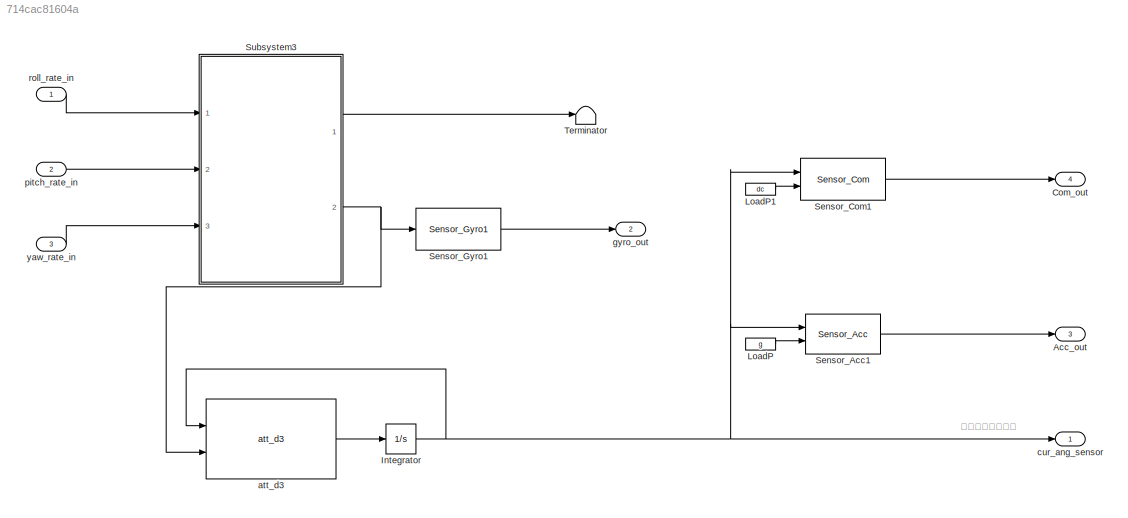
MODEL slx_714cac81604a
KIND model
BLOCK [Outport] Acc_out
  IconDisplay = Port number
  Port = 3
BLOCK [Outport] Com_out
  IconDisplay = Port number
  Port = 4
BLOCK [Integrator] Integrator
  InitialCondition = [0;0;0]
  Ports = [1, 1]
BLOCK [Constant] LoadP
  SampleTime = 0
  Value = g
BLOCK [Constant] LoadP1
  SampleTime = 0
  Value = dc
BLOCK [Reference] Sensor_Acc1  REF=Lib_Sensors/Sensor_Acc
  Ports = [2, 1]
  SourceBlock = Lib_Sensors/Sensor_Acc
  SourceType = SubSystem
BLOCK [Reference] Sensor_Com1  REF=Lib_Sensors/Sensor_Com
  Ports = [2, 1]
  SourceBlock = Lib_Sensors/Sensor_Com
  SourceType = SubSystem
BLOCK [Reference] Sensor_Gyro1  REF=Lib_Sensors/Sensor_Gyro1
  Ports = [1, 1]
  SourceBlock = Lib_Sensors/Sensor_Gyro1
  SourceType = SubSystem
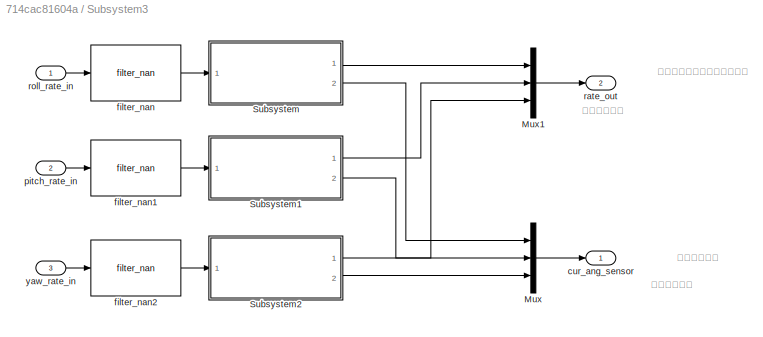
BLOCK [SubSystem] Subsystem3
  Ports = [3, 2]
  RequestExecContextInheritance = off
BLOCK [Mux] Subsystem3/Mux
  DisplayOption = bar
  Inputs = 3
  Ports = [3, 1]
BLOCK [Mux] Subsystem3/Mux1
  DisplayOption = bar
  Inputs = 3
  Ports = [3, 1]
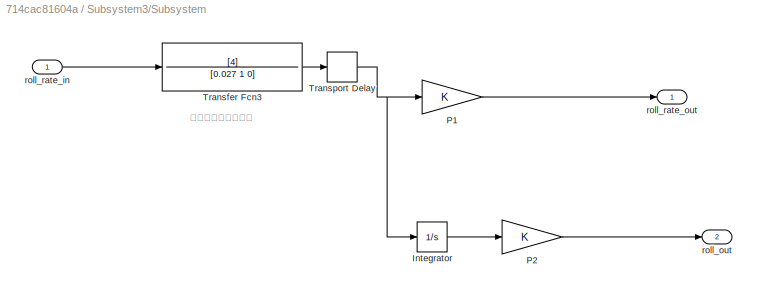
BLOCK [SubSystem] Subsystem3/Subsystem
  Ports = [1, 2]
  RequestExecContextInheritance = off
BLOCK [Integrator] Subsystem3/Subsystem/Integrator
  Ports = [1, 1]
BLOCK [Gain] Subsystem3/Subsystem/P1
  OutDataTypeStr = Inherit: Inherit via internal rule
  ParamDataTypeStr = Inherit: Inherit via internal rule
  SaturateOnIntegerOverflow = off
BLOCK [Gain] Subsystem3/Subsystem/P2
  OutDataTypeStr = Inherit: Inherit via internal rule
  ParamDataTypeStr = Inherit: Inherit via internal rule
  SaturateOnIntegerOverflow = off
BLOCK [TransferFcn] Subsystem3/Subsystem/Transfer Fcn3
  AbsoluteTolerance = 1e-19
  Denominator = [0.027 1 0]
  Numerator = [4]
BLOCK [TransportDelay] Subsystem3/Subsystem/Transport Delay
  DelayTime = 0.02606
  Ports = [1, 1]
BLOCK [Outport] Subsystem3/Subsystem/roll_out
  IconDisplay = Port number
  Port = 2
BLOCK [Inport] Subsystem3/Subsystem/roll_rate_in
  IconDisplay = Port number
BLOCK [Outport] Subsystem3/Subsystem/roll_rate_out
  IconDisplay = Port number
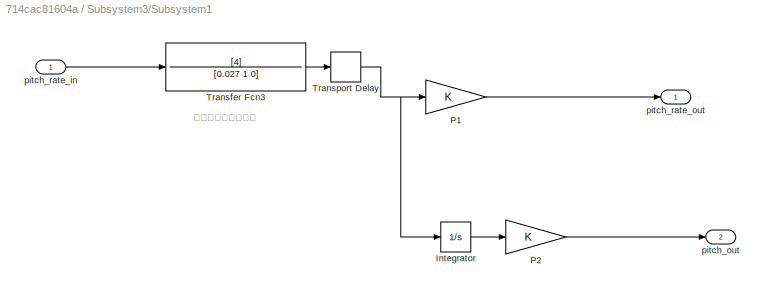
BLOCK [SubSystem] Subsystem3/Subsystem1
  Ports = [1, 2]
  RequestExecContextInheritance = off
BLOCK [Integrator] Subsystem3/Subsystem1/Integrator
  Ports = [1, 1]
BLOCK [Gain] Subsystem3/Subsystem1/P1
  OutDataTypeStr = Inherit: Inherit via internal rule
  ParamDataTypeStr = Inherit: Inherit via internal rule
  SaturateOnIntegerOverflow = off
BLOCK [Gain] Subsystem3/Subsystem1/P2
  OutDataTypeStr = Inherit: Inherit via internal rule
  ParamDataTypeStr = Inherit: Inherit via internal rule
  SaturateOnIntegerOverflow = off
BLOCK [TransferFcn] Subsystem3/Subsystem1/Transfer Fcn3
  AbsoluteTolerance = 1e-25
  Denominator = [0.027 1 0]
  Numerator = [4]
BLOCK [TransportDelay] Subsystem3/Subsystem1/Transport Delay
  DelayTime = 0.02606
  Ports = [1, 1]
BLOCK [Outport] Subsystem3/Subsystem1/pitch_out
  IconDisplay = Port number
  Port = 2
BLOCK [Inport] Subsystem3/Subsystem1/pitch_rate_in
  IconDisplay = Port number
BLOCK [Outport] Subsystem3/Subsystem1/pitch_rate_out
  IconDisplay = Port number
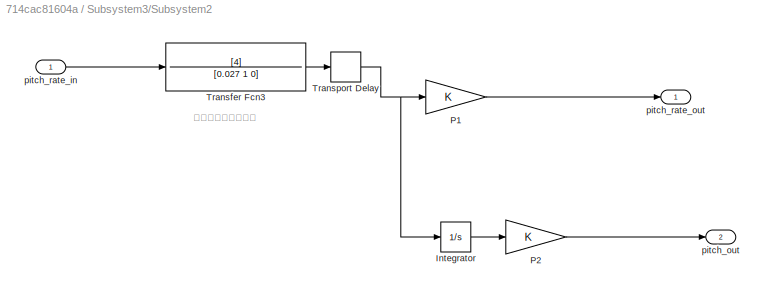
BLOCK [SubSystem] Subsystem3/Subsystem2
  Ports = [1, 2]
  RequestExecContextInheritance = off
BLOCK [Integrator] Subsystem3/Subsystem2/Integrator
  Ports = [1, 1]
BLOCK [Gain] Subsystem3/Subsystem2/P1
  OutDataTypeStr = Inherit: Inherit via internal rule
  ParamDataTypeStr = Inherit: Inherit via internal rule
  SaturateOnIntegerOverflow = off
BLOCK [Gain] Subsystem3/Subsystem2/P2
  OutDataTypeStr = Inherit: Inherit via internal rule
  ParamDataTypeStr = Inherit: Inherit via internal rule
  SaturateOnIntegerOverflow = off
BLOCK [TransferFcn] Subsystem3/Subsystem2/Transfer Fcn3
  AbsoluteTolerance = 1e-19
  Denominator = [0.027 1 0]
  Numerator = [4]
BLOCK [TransportDelay] Subsystem3/Subsystem2/Transport Delay
  DelayTime = 0.02606
  Ports = [1, 1]
BLOCK [Outport] Subsystem3/Subsystem2/pitch_out
  IconDisplay = Port number
  Port = 2
BLOCK [Inport] Subsystem3/Subsystem2/pitch_rate_in
  IconDisplay = Port number
BLOCK [Outport] Subsystem3/Subsystem2/pitch_rate_out
  IconDisplay = Port number
BLOCK [Outport] Subsystem3/cur_ang_sensor
  IconDisplay = Port number
BLOCK [Reference] Subsystem3/filter_nan  REF=Lib_SimpleCopter/filter_nan
  Ports = [1, 1]
  SourceBlock = Lib_SimpleCopter/filter_nan
  SourceType = SubSystem
BLOCK [Reference] Subsystem3/filter_nan1  REF=Lib_SimpleCopter/filter_nan
  Ports = [1, 1]
  SourceBlock = Lib_SimpleCopter/filter_nan
  SourceType = SubSystem
BLOCK [Reference] Subsystem3/filter_nan2  REF=Lib_SimpleCopter/filter_nan
  Ports = [1, 1]
  SourceBlock = Lib_SimpleCopter/filter_nan
  SourceType = SubSystem
BLOCK [Inport] Subsystem3/pitch_rate_in
  IconDisplay = Port number
  Port = 2
BLOCK [Outport] Subsystem3/rate_out
  IconDisplay = Port number
  Port = 2
BLOCK [Inport] Subsystem3/roll_rate_in
  IconDisplay = Port number
BLOCK [Inport] Subsystem3/yaw_rate_in
  IconDisplay = Port number
  Port = 3
BLOCK [Terminator] Terminator
BLOCK [Reference] att_d3  REF=Lib_Sensors/att_d3
  Ports = [2, 1]
  SourceBlock = Lib_Sensors/att_d3
  SourceType = SubSystem
BLOCK [Outport] cur_ang_sensor
  IconDisplay = Port number
BLOCK [Outport] gyro_out
  IconDisplay = Port number
  Port = 2
BLOCK [Inport] pitch_rate_in
  IconDisplay = Port number
  Port = 2
BLOCK [Inport] roll_rate_in
  IconDisplay = Port number
BLOCK [Inport] yaw_rate_in
  IconDisplay = Port number
  Port = 3
ANNOTATION (root): 这里最后要去掉的
ANNOTATION Subsystem3: 在小角度时与欧拉角导数近视
ANNOTATION Subsystem3: 大地坐标系下
ANNOTATION Subsystem3: 机体坐标系下
ANNOTATION Subsystem3/Subsystem: 应该至少是二阶系统
ANNOTATION Subsystem3/Subsystem1: 应该至少是二阶系统
ANNOTATION Subsystem3/Subsystem2: 应该至少是二阶系统
NET Integrator:1 -> Sensor_Acc1:1, Sensor_Com1:1, att_d3:1, cur_ang_sensor:1
LINE LoadP1:1 -> Sensor_Com1:2
LINE LoadP:1 -> Sensor_Acc1:2
LINE Sensor_Acc1:1 -> Acc_out:1
LINE Sensor_Com1:1 -> Com_out:1
LINE Sensor_Gyro1:1 -> gyro_out:1
LINE Subsystem3/Mux1:1 -> Subsystem3/rate_out:1
LINE Subsystem3/Mux:1 -> Subsystem3/cur_ang_sensor:1
LINE Subsystem3/Subsystem/Integrator:1 -> Subsystem3/Subsystem/P2:1
LINE Subsystem3/Subsystem/P1:1 -> Subsystem3/Subsystem/roll_rate_out:1
LINE Subsystem3/Subsystem/P2:1 -> Subsystem3/Subsystem/roll_out:1
LINE Subsystem3/Subsystem/Transfer Fcn3:1 -> Subsystem3/Subsystem/Transport Delay:1
NET Subsystem3/Subsystem/Transport Delay:1 -> Subsystem3/Subsystem/Integrator:1, Subsystem3/Subsystem/P1:1
LINE Subsystem3/Subsystem/roll_rate_in:1 -> Subsystem3/Subsystem/Transfer Fcn3:1
LINE Subsystem3/Subsystem1/Integrator:1 -> Subsystem3/Subsystem1/P2:1
LINE Subsystem3/Subsystem1/P1:1 -> Subsystem3/Subsystem1/pitch_rate_out:1
LINE Subsystem3/Subsystem1/P2:1 -> Subsystem3/Subsystem1/pitch_out:1
LINE Subsystem3/Subsystem1/Transfer Fcn3:1 -> Subsystem3/Subsystem1/Transport Delay:1
NET Subsystem3/Subsystem1/Transport Delay:1 -> Subsystem3/Subsystem1/Integrator:1, Subsystem3/Subsystem1/P1:1
LINE Subsystem3/Subsystem1/pitch_rate_in:1 -> Subsystem3/Subsystem1/Transfer Fcn3:1
LINE Subsystem3/Subsystem1:1 -> Subsystem3/Mux1:2
LINE Subsystem3/Subsystem1:2 -> Subsystem3/Mux:2
LINE Subsystem3/Subsystem2/Integrator:1 -> Subsystem3/Subsystem2/P2:1
LINE Subsystem3/Subsystem2/P1:1 -> Subsystem3/Subsystem2/pitch_rate_out:1
LINE Subsystem3/Subsystem2/P2:1 -> Subsystem3/Subsystem2/pitch_out:1
LINE Subsystem3/Subsystem2/Transfer Fcn3:1 -> Subsystem3/Subsystem2/Transport Delay:1
NET Subsystem3/Subsystem2/Transport Delay:1 -> Subsystem3/Subsystem2/Integrator:1, Subsystem3/Subsystem2/P1:1
LINE Subsystem3/Subsystem2/pitch_rate_in:1 -> Subsystem3/Subsystem2/Transfer Fcn3:1
LINE Subsystem3/Subsystem2:1 -> Subsystem3/Mux1:3
LINE Subsystem3/Subsystem2:2 -> Subsystem3/Mux:3
LINE Subsystem3/Subsystem:1 -> Subsystem3/Mux1:1
LINE Subsystem3/Subsystem:2 -> Subsystem3/Mux:1
LINE Subsystem3/filter_nan1:1 -> Subsystem3/Subsystem1:1
LINE Subsystem3/filter_nan2:1 -> Subsystem3/Subsystem2:1
LINE Subsystem3/filter_nan:1 -> Subsystem3/Subsystem:1
LINE Subsystem3/pitch_rate_in:1 -> Subsystem3/filter_nan1:1
LINE Subsystem3/roll_rate_in:1 -> Subsystem3/filter_nan:1
LINE Subsystem3/yaw_rate_in:1 -> Subsystem3/filter_nan2:1
LINE Subsystem3:1 -> Terminator:1
NET Subsystem3:2 -> Sensor_Gyro1:1, att_d3:2
LINE att_d3:1 -> Integrator:1
LINE pitch_rate_in:1 -> Subsystem3:2
LINE roll_rate_in:1 -> Subsystem3:1
LINE yaw_rate_in:1 -> Subsystem3:3
note: NET lines group one-source signal fan-out (src -> all destinations, sorted); 1:1 wires keep LINE
